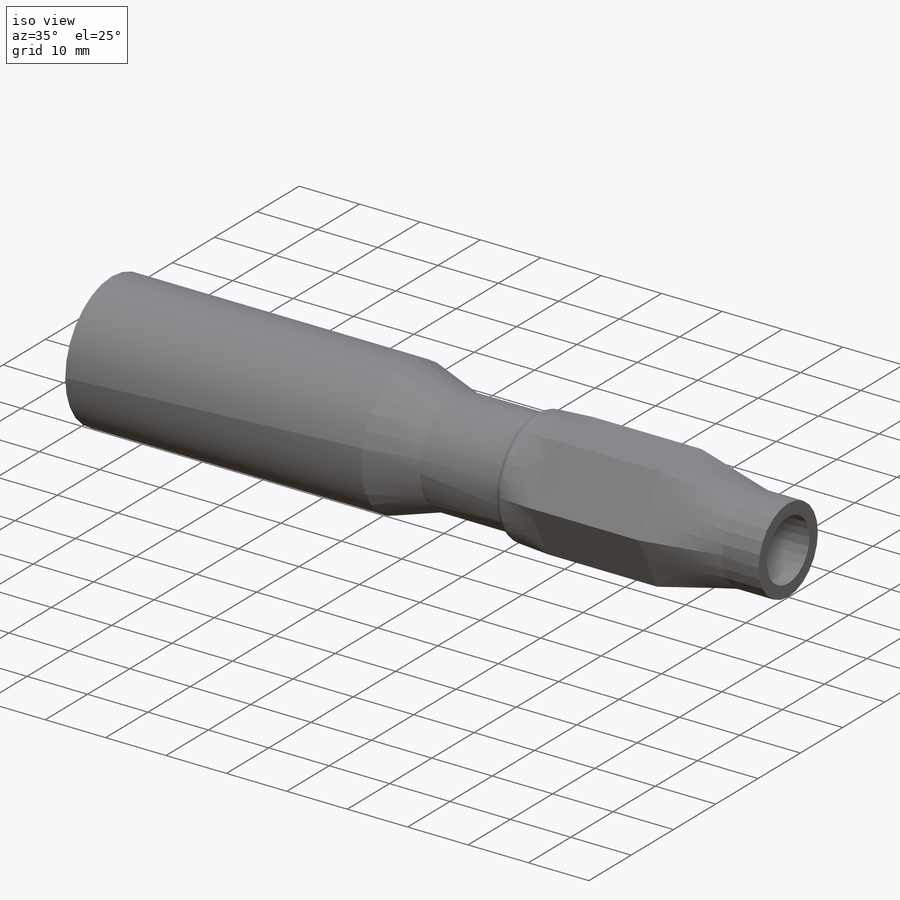
[diagram: iso view]
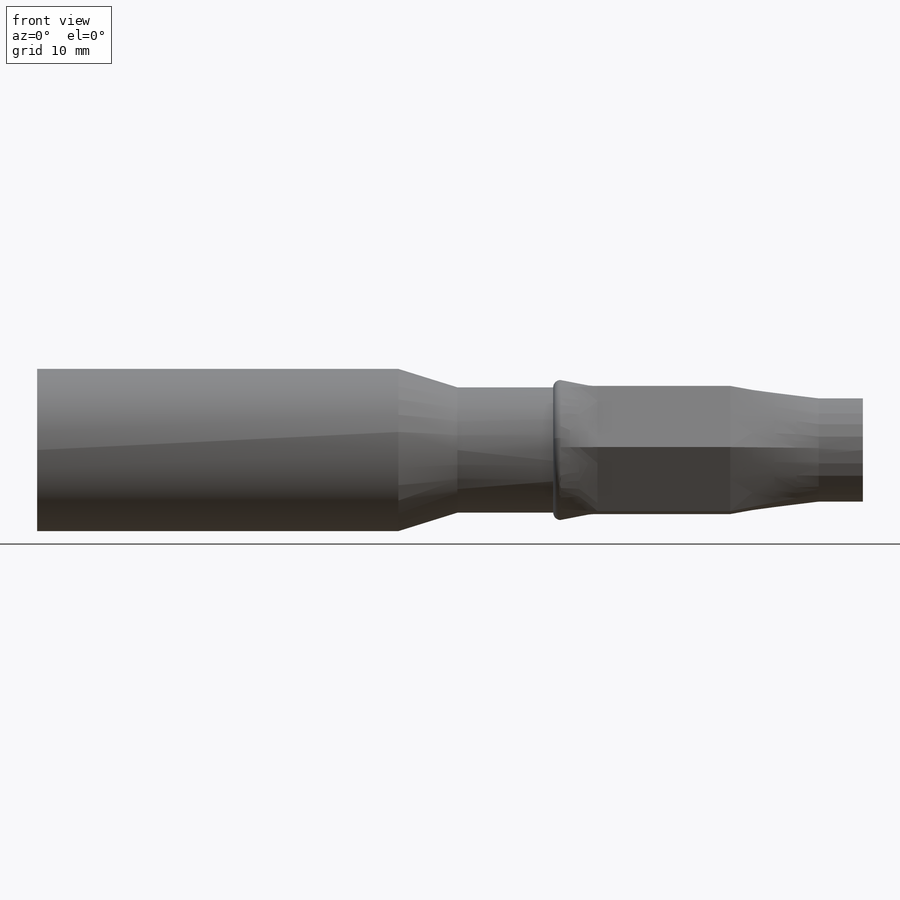
[diagram: front view]
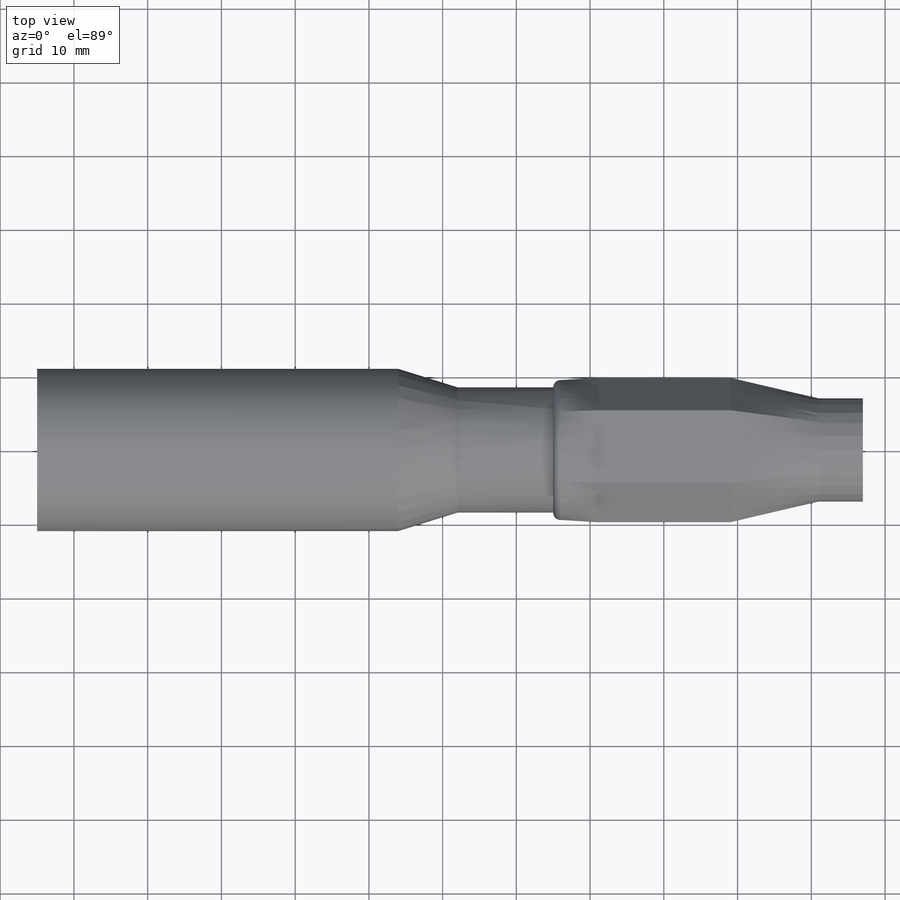
[diagram: top view]
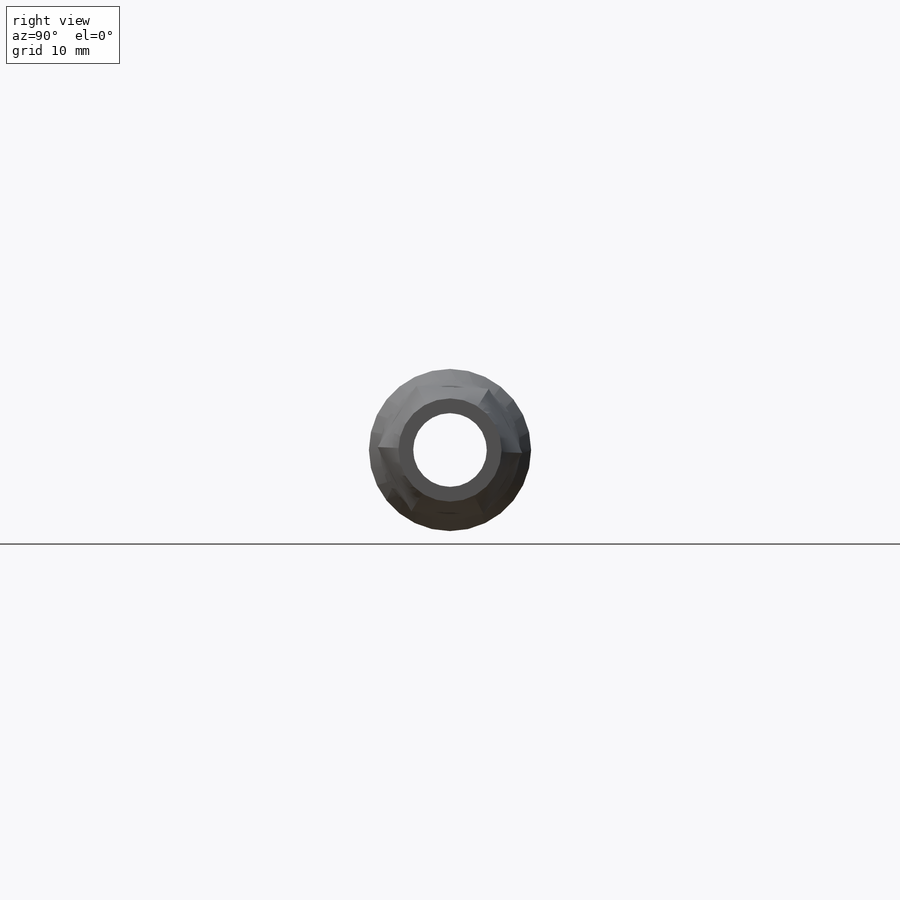
[diagram: right view]
SOLIDWORKS PART (.sldprt)
format: sldprt  version: not decoded by parser v0  size: 355,328 bytes
history: native  units: mm
features: sketch x11, revolve x2, plane x2, extrude x2, material x1 (+16 scaffold rows collapsed)
feature tree (34):
  scaffold x16  (default folders/planes/origin — collapsed)
  material  "Material <not specified>"
  sketch  "Sketch1"  dims[c1.D8=1.0mm c1.D1=11.0mm c1.D2=8.5mm c1.D3=8.0mm c1.D4=13.0mm c1.D5=70.0mm c1.D6=35.0mm c1.D9=1.0mm c2.D1=11.0mm c2.D2=8.5mm c2.D10=2.0mm c2.D11=2.0mm c2.D7=2.0mm]
  revolve  "Revolve1"  Angle=360deg
  sketch  "Sketch2"  dims[D1=0.0mm]
  plane  "Plane1"  Offset=5mm
  sketch  "Sketch3"  dims[D1=17.0mm D2=2.0mm D3=2.0mm]
  sketch  "Sketch2<3>"
  sketch  "Sketch3<3>"
  sketch  "Sketch5"  dims[D1=0.0mm]
  extrude  "Boss-Extrude1"  Depth=18mm
  plane  "Plane2"  Offset=12mm
  sketch  "Sketch6"  dims[D1=14.0mm D2=2.0mm]
  sketch  "Sketch7"  dims[D1=0.0mm]
  revolve  "Loft2"  Angle=0deg Cut-Loft2=0deg
  sketch  "Sketch7<3>"
  sketch  "Sketch6<3>"
  sketch  "Sketch8"  dims[D1=14.0mm D2=2.0mm]
  extrude  "Boss-Extrude2"  Depth=6mm
decode coverage: 11 of 15 modeling features carry decoded parameters
note: suppression state not decoded; provenance and decode notes live in map.json
